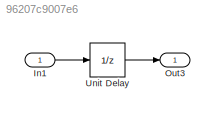
MODEL slx_96207c9007e6
KIND model
CONFIG AbsTol = auto
CONFIG EnableMultiTasking = on
CONFIG FixedStep = 0.200000
CONFIG MaxStep = auto
CONFIG MinStep = auto
CONFIG RelTol = 1e-3
CONFIG SampleTimeConstraint = Unconstrained
CONFIG Solver = FixedStepDiscrete
CONFIG SolverName = FixedStepDiscrete
CONFIG StartTime = 0.0
CONFIG StopTime = 10.0
BLOCK [Inport] In1
  IconDisplay = Port number
  OutDataTypeStr = int32
BLOCK [Outport] Out3
  IconDisplay = Port number
BLOCK [UnitDelay] Unit Delay
  InitialCondition = 0.0
  InputProcessing = Elements as channels (sample based)
  SampleTime = -1
LINE In1:1 -> Unit Delay:1
LINE Unit Delay:1 -> Out3:1
